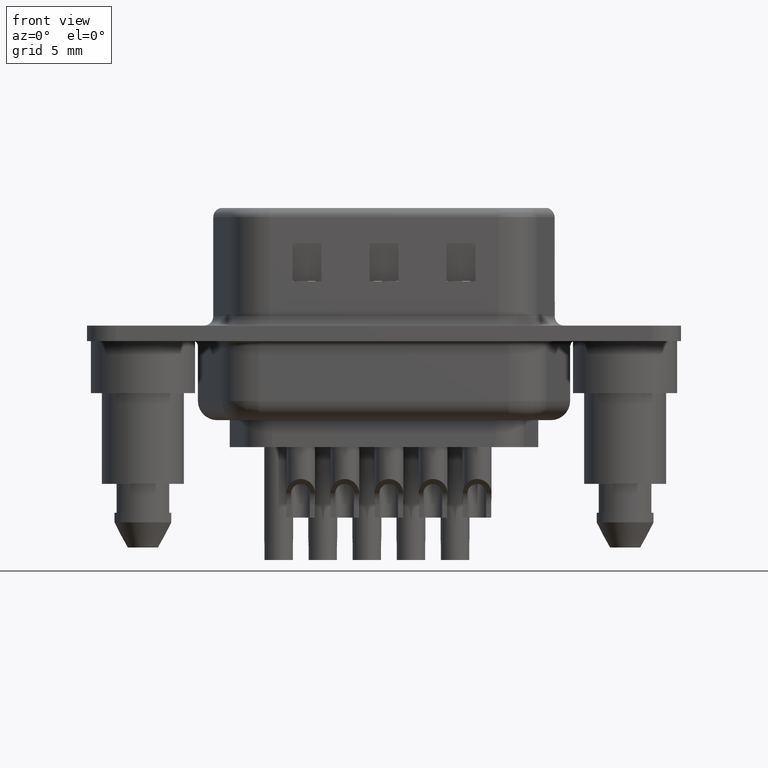
[diagram: clean part render]
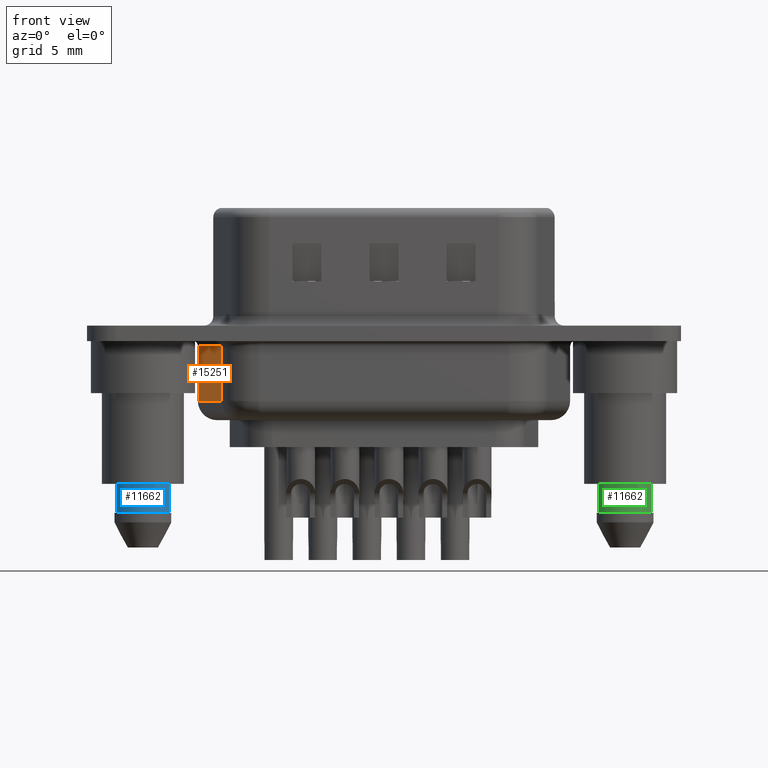
[diagram: same view with three faces highlighted in distinct colors, each labeled with its STEP entity id]
A machine part, front view with three faces highlighted in distinct colors.
Their STEP definitions:

[orange] entity #15251 — the highlighted planar face has unit normal (0.9848, 0.1736, 0).
#286 = CARTESIAN_POINT ( 'NONE',  ( 2.880384493975575400, 3.002703644666156800, -3.499999999999999600 ) ) ;
#605 = VECTOR ( 'NONE', #3997, 999.9999999999998900 ) ;
#1700 = PLANE ( 'NONE',  #3175 ) ;
#1838 = CARTESIAN_POINT ( 'NONE',  ( 4.061775264722247600, -3.697296355333849100, -4.500000000000000000 ) ) ;
#2032 = ORIENTED_EDGE ( 'NONE', *, *, #17220, .T. ) ;
#2837 = LINE ( 'NONE', #1838, #16926 ) ;
#3079 = DIRECTION ( 'NONE',  ( -0.1736481776669240900, 0.9848077530122092400, 0.0000000000000000000 ) ) ;
#3175 = AXIS2_PLACEMENT_3D ( 'NONE', #12596, #11292, #3079 ) ;
#3997 = DIRECTION ( 'NONE',  ( 0.1736481776669240900, -0.9848077530122092400, -0.0000000000000000000 ) ) ;
#4155 = EDGE_LOOP ( 'NONE', ( #11098, #11361, #9467, #2032 ) ) ;
#4512 = FACE_OUTER_BOUND ( 'NONE', #4155, .T. ) ;
#5092 = DIRECTION ( 'NONE',  ( -0.0000000000000000000, -0.0000000000000000000, 1.000000000000000000 ) ) ;
#5749 = EDGE_CURVE ( 'NONE', #8357, #11547, #6447, .T. ) ;
#6390 = VECTOR ( 'NONE', #12033, 999.9999999999998900 ) ;
#6447 = LINE ( 'NONE', #17626, #16882 ) ;
#6991 = VERTEX_POINT ( 'NONE', #8741 ) ;
#7140 = CARTESIAN_POINT ( 'NONE',  ( 2.880384493975575400, 3.002703644666156800, -0.6500000000000000200 ) ) ;
#7695 = LINE ( 'NONE', #13355, #6390 ) ;
#7925 = LINE ( 'NONE', #13484, #605 ) ;
#8357 = VERTEX_POINT ( 'NONE', #286 ) ;
#8741 = CARTESIAN_POINT ( 'NONE',  ( 4.061775264722247600, -3.697296355333849100, -3.499999999999999600 ) ) ;
#8856 = EDGE_CURVE ( 'NONE', #8357, #6991, #7925, .T. ) ;
#9467 = ORIENTED_EDGE ( 'NONE', *, *, #12404, .T. ) ;
#10061 = DIRECTION ( 'NONE',  ( -0.0000000000000000000, -0.0000000000000000000, 1.000000000000000000 ) ) ;
#11098 = ORIENTED_EDGE ( 'NONE', *, *, #5749, .F. ) ;
#11292 = DIRECTION ( 'NONE',  ( 0.9848077530122092400, 0.1736481776669240900, 0.0000000000000000000 ) ) ;
#11361 = ORIENTED_EDGE ( 'NONE', *, *, #8856, .T. ) ;
#11547 = VERTEX_POINT ( 'NONE', #7140 ) ;
#12033 = DIRECTION ( 'NONE',  ( -0.1736481776669240900, 0.9848077530122092400, 0.0000000000000000000 ) ) ;
#12404 = EDGE_CURVE ( 'NONE', #6991, #14424, #2837, .T. ) ;
#12596 = CARTESIAN_POINT ( 'NONE',  ( 2.880384493975575400, 3.002703644666156800, -4.500000000000000000 ) ) ;
#13145 = CARTESIAN_POINT ( 'NONE',  ( 4.061775264722247600, -3.697296355333849100, -0.6500000000000000200 ) ) ;
#13355 = CARTESIAN_POINT ( 'NONE',  ( 2.880384493975575400, 3.002703644666156800, -0.6500000000000000200 ) ) ;
#13484 = CARTESIAN_POINT ( 'NONE',  ( 2.880384493975575400, 3.002703644666156800, -3.499999999999999600 ) ) ;
#14424 = VERTEX_POINT ( 'NONE', #13145 ) ;
#15251 = ADVANCED_FACE ( 'NONE', ( #4512 ), #1700, .F. ) ;
#16882 = VECTOR ( 'NONE', #5092, 1000.000000000000000 ) ;
#16926 = VECTOR ( 'NONE', #10061, 1000.000000000000000 ) ;
#17220 = EDGE_CURVE ( 'NONE', #14424, #11547, #7695, .T. ) ;
#17626 = CARTESIAN_POINT ( 'NONE',  ( 2.880384493975575400, 3.002703644666156800, -4.500000000000000000 ) ) ;

[blue] entity #11662 — the highlighted cylindrical surface (edge-blend (fillet) strip) has radius 1.5 mm, axis along (0, 0, 1).
#521 = DIRECTION ( 'NONE',  ( -0.0000000000000000000, -0.0000000000000000000, 1.000000000000000000 ) ) ;
#2158 = DIRECTION ( 'NONE',  ( -0.0000000000000000000, -0.0000000000000000000, 1.000000000000000000 ) ) ;
#2465 = VERTEX_POINT ( 'NONE', #13037 ) ;
#2980 = DIRECTION ( 'NONE',  ( -0.0000000000000000000, -0.0000000000000000000, 1.000000000000000000 ) ) ;
#3085 = LINE ( 'NONE', #8767, #10403 ) ;
#5449 = CARTESIAN_POINT ( 'NONE',  ( 1.363589014329464200, -0.6250000000000002200, -9.300000000000000700 ) ) ;
#6173 = CARTESIAN_POINT ( 'NONE',  ( 0.0000000000000000000, 0.0000000000000000000, -7.800000000000001600 ) ) ;
#6424 = ORIENTED_EDGE ( 'NONE', *, *, #12695, .F. ) ;
#6478 = ORIENTED_EDGE ( 'NONE', *, *, #16070, .T. ) ;
#6763 = AXIS2_PLACEMENT_3D ( 'NONE', #10387, #2158, #11750 ) ;
#6931 = CARTESIAN_POINT ( 'NONE',  ( 1.363589014329464400, -0.6250000000000001100, -7.800000000000000700 ) ) ;
#7005 = ORIENTED_EDGE ( 'NONE', *, *, #10983, .T. ) ;
#7123 = CARTESIAN_POINT ( 'NONE',  ( 0.0000000000000000000, 0.0000000000000000000, 0.5806333143474410300 ) ) ;
#7563 = DIRECTION ( 'NONE',  ( 1.000000000000000000, 0.0000000000000000000, 0.0000000000000000000 ) ) ;
#8767 = CARTESIAN_POINT ( 'NONE',  ( 1.363589014329464400, -0.6250000000000001100, 0.5806333143474410300 ) ) ;
#9515 = FACE_OUTER_BOUND ( 'NONE', #15203, .T. ) ;
#9653 = CIRCLE ( 'NONE', #6763, 1.500000000000000000 ) ;
#10387 = CARTESIAN_POINT ( 'NONE',  ( 0.0000000000000000000, 0.0000000000000000000, -9.300000000000000700 ) ) ;
#10403 = VECTOR ( 'NONE', #521, 1000.000000000000000 ) ;
#10901 = VECTOR ( 'NONE', #16420, 1000.000000000000000 ) ;
#10983 = EDGE_CURVE ( 'NONE', #16491, #17156, #3085, .T. ) ;
#11662 = ADVANCED_FACE ( 'NONE', ( #9515 ), #12707, .T. ) ;
#11750 = DIRECTION ( 'NONE',  ( 1.000000000000000000, 0.0000000000000000000, 0.0000000000000000000 ) ) ;
#12449 = AXIS2_PLACEMENT_3D ( 'NONE', #6173, #15656, #7563 ) ;
#12575 = ORIENTED_EDGE ( 'NONE', *, *, #17149, .T. ) ;
#12695 = EDGE_CURVE ( 'NONE', #13570, #17156, #16693, .T. ) ;
#12707 = CYLINDRICAL_SURFACE ( 'NONE', #13543, 1.500000000000000000 ) ;
#13037 = CARTESIAN_POINT ( 'NONE',  ( -1.363589014329464200, -0.6250000000000000000, -9.300000000000000700 ) ) ;
#13521 = CARTESIAN_POINT ( 'NONE',  ( -1.363589014329464200, -0.6249999999999998900, -7.800000000000000700 ) ) ;
#13543 = AXIS2_PLACEMENT_3D ( 'NONE', #7123, #2980, #16617 ) ;
#13570 = VERTEX_POINT ( 'NONE', #13521 ) ;
#14471 = LINE ( 'NONE', #16366, #10901 ) ;
#15203 = EDGE_LOOP ( 'NONE', ( #6478, #7005, #6424, #12575 ) ) ;
#15656 = DIRECTION ( 'NONE',  ( -0.0000000000000000000, -0.0000000000000000000, 1.000000000000000000 ) ) ;
#16070 = EDGE_CURVE ( 'NONE', #2465, #16491, #9653, .T. ) ;
#16366 = CARTESIAN_POINT ( 'NONE',  ( -1.363589014329464400, -0.6249999999999998900, 0.5806333143474410300 ) ) ;
#16420 = DIRECTION ( 'NONE',  ( 0.0000000000000000000, 0.0000000000000000000, -1.000000000000000000 ) ) ;
#16491 = VERTEX_POINT ( 'NONE', #5449 ) ;
#16617 = DIRECTION ( 'NONE',  ( 1.000000000000000000, 0.0000000000000000000, 0.0000000000000000000 ) ) ;
#16693 = CIRCLE ( 'NONE', #12449, 1.500000000000000000 ) ;
#17149 = EDGE_CURVE ( 'NONE', #13570, #2465, #14471, .T. ) ;
#17156 = VERTEX_POINT ( 'NONE', #6931 ) ;

[green] entity #11662 — the highlighted cylindrical surface (edge-blend (fillet) strip) has radius 1.5 mm, axis along (0, 0, 1).
#521 = DIRECTION ( 'NONE',  ( -0.0000000000000000000, -0.0000000000000000000, 1.000000000000000000 ) ) ;
#2158 = DIRECTION ( 'NONE',  ( -0.0000000000000000000, -0.0000000000000000000, 1.000000000000000000 ) ) ;
#2465 = VERTEX_POINT ( 'NONE', #13037 ) ;
#2980 = DIRECTION ( 'NONE',  ( -0.0000000000000000000, -0.0000000000000000000, 1.000000000000000000 ) ) ;
#3085 = LINE ( 'NONE', #8767, #10403 ) ;
#5449 = CARTESIAN_POINT ( 'NONE',  ( 1.363589014329464200, -0.6250000000000002200, -9.300000000000000700 ) ) ;
#6173 = CARTESIAN_POINT ( 'NONE',  ( 0.0000000000000000000, 0.0000000000000000000, -7.800000000000001600 ) ) ;
#6424 = ORIENTED_EDGE ( 'NONE', *, *, #12695, .F. ) ;
#6478 = ORIENTED_EDGE ( 'NONE', *, *, #16070, .T. ) ;
#6763 = AXIS2_PLACEMENT_3D ( 'NONE', #10387, #2158, #11750 ) ;
#6931 = CARTESIAN_POINT ( 'NONE',  ( 1.363589014329464400, -0.6250000000000001100, -7.800000000000000700 ) ) ;
#7005 = ORIENTED_EDGE ( 'NONE', *, *, #10983, .T. ) ;
#7123 = CARTESIAN_POINT ( 'NONE',  ( 0.0000000000000000000, 0.0000000000000000000, 0.5806333143474410300 ) ) ;
#7563 = DIRECTION ( 'NONE',  ( 1.000000000000000000, 0.0000000000000000000, 0.0000000000000000000 ) ) ;
#8767 = CARTESIAN_POINT ( 'NONE',  ( 1.363589014329464400, -0.6250000000000001100, 0.5806333143474410300 ) ) ;
#9515 = FACE_OUTER_BOUND ( 'NONE', #15203, .T. ) ;
#9653 = CIRCLE ( 'NONE', #6763, 1.500000000000000000 ) ;
#10387 = CARTESIAN_POINT ( 'NONE',  ( 0.0000000000000000000, 0.0000000000000000000, -9.300000000000000700 ) ) ;
#10403 = VECTOR ( 'NONE', #521, 1000.000000000000000 ) ;
#10901 = VECTOR ( 'NONE', #16420, 1000.000000000000000 ) ;
#10983 = EDGE_CURVE ( 'NONE', #16491, #17156, #3085, .T. ) ;
#11662 = ADVANCED_FACE ( 'NONE', ( #9515 ), #12707, .T. ) ;
#11750 = DIRECTION ( 'NONE',  ( 1.000000000000000000, 0.0000000000000000000, 0.0000000000000000000 ) ) ;
#12449 = AXIS2_PLACEMENT_3D ( 'NONE', #6173, #15656, #7563 ) ;
#12575 = ORIENTED_EDGE ( 'NONE', *, *, #17149, .T. ) ;
#12695 = EDGE_CURVE ( 'NONE', #13570, #17156, #16693, .T. ) ;
#12707 = CYLINDRICAL_SURFACE ( 'NONE', #13543, 1.500000000000000000 ) ;
#13037 = CARTESIAN_POINT ( 'NONE',  ( -1.363589014329464200, -0.6250000000000000000, -9.300000000000000700 ) ) ;
#13521 = CARTESIAN_POINT ( 'NONE',  ( -1.363589014329464200, -0.6249999999999998900, -7.800000000000000700 ) ) ;
#13543 = AXIS2_PLACEMENT_3D ( 'NONE', #7123, #2980, #16617 ) ;
#13570 = VERTEX_POINT ( 'NONE', #13521 ) ;
#14471 = LINE ( 'NONE', #16366, #10901 ) ;
#15203 = EDGE_LOOP ( 'NONE', ( #6478, #7005, #6424, #12575 ) ) ;
#15656 = DIRECTION ( 'NONE',  ( -0.0000000000000000000, -0.0000000000000000000, 1.000000000000000000 ) ) ;
#16070 = EDGE_CURVE ( 'NONE', #2465, #16491, #9653, .T. ) ;
#16366 = CARTESIAN_POINT ( 'NONE',  ( -1.363589014329464400, -0.6249999999999998900, 0.5806333143474410300 ) ) ;
#16420 = DIRECTION ( 'NONE',  ( 0.0000000000000000000, 0.0000000000000000000, -1.000000000000000000 ) ) ;
#16491 = VERTEX_POINT ( 'NONE', #5449 ) ;
#16617 = DIRECTION ( 'NONE',  ( 1.000000000000000000, 0.0000000000000000000, 0.0000000000000000000 ) ) ;
#16693 = CIRCLE ( 'NONE', #12449, 1.500000000000000000 ) ;
#17149 = EDGE_CURVE ( 'NONE', #13570, #2465, #14471, .T. ) ;
#17156 = VERTEX_POINT ( 'NONE', #6931 ) ;